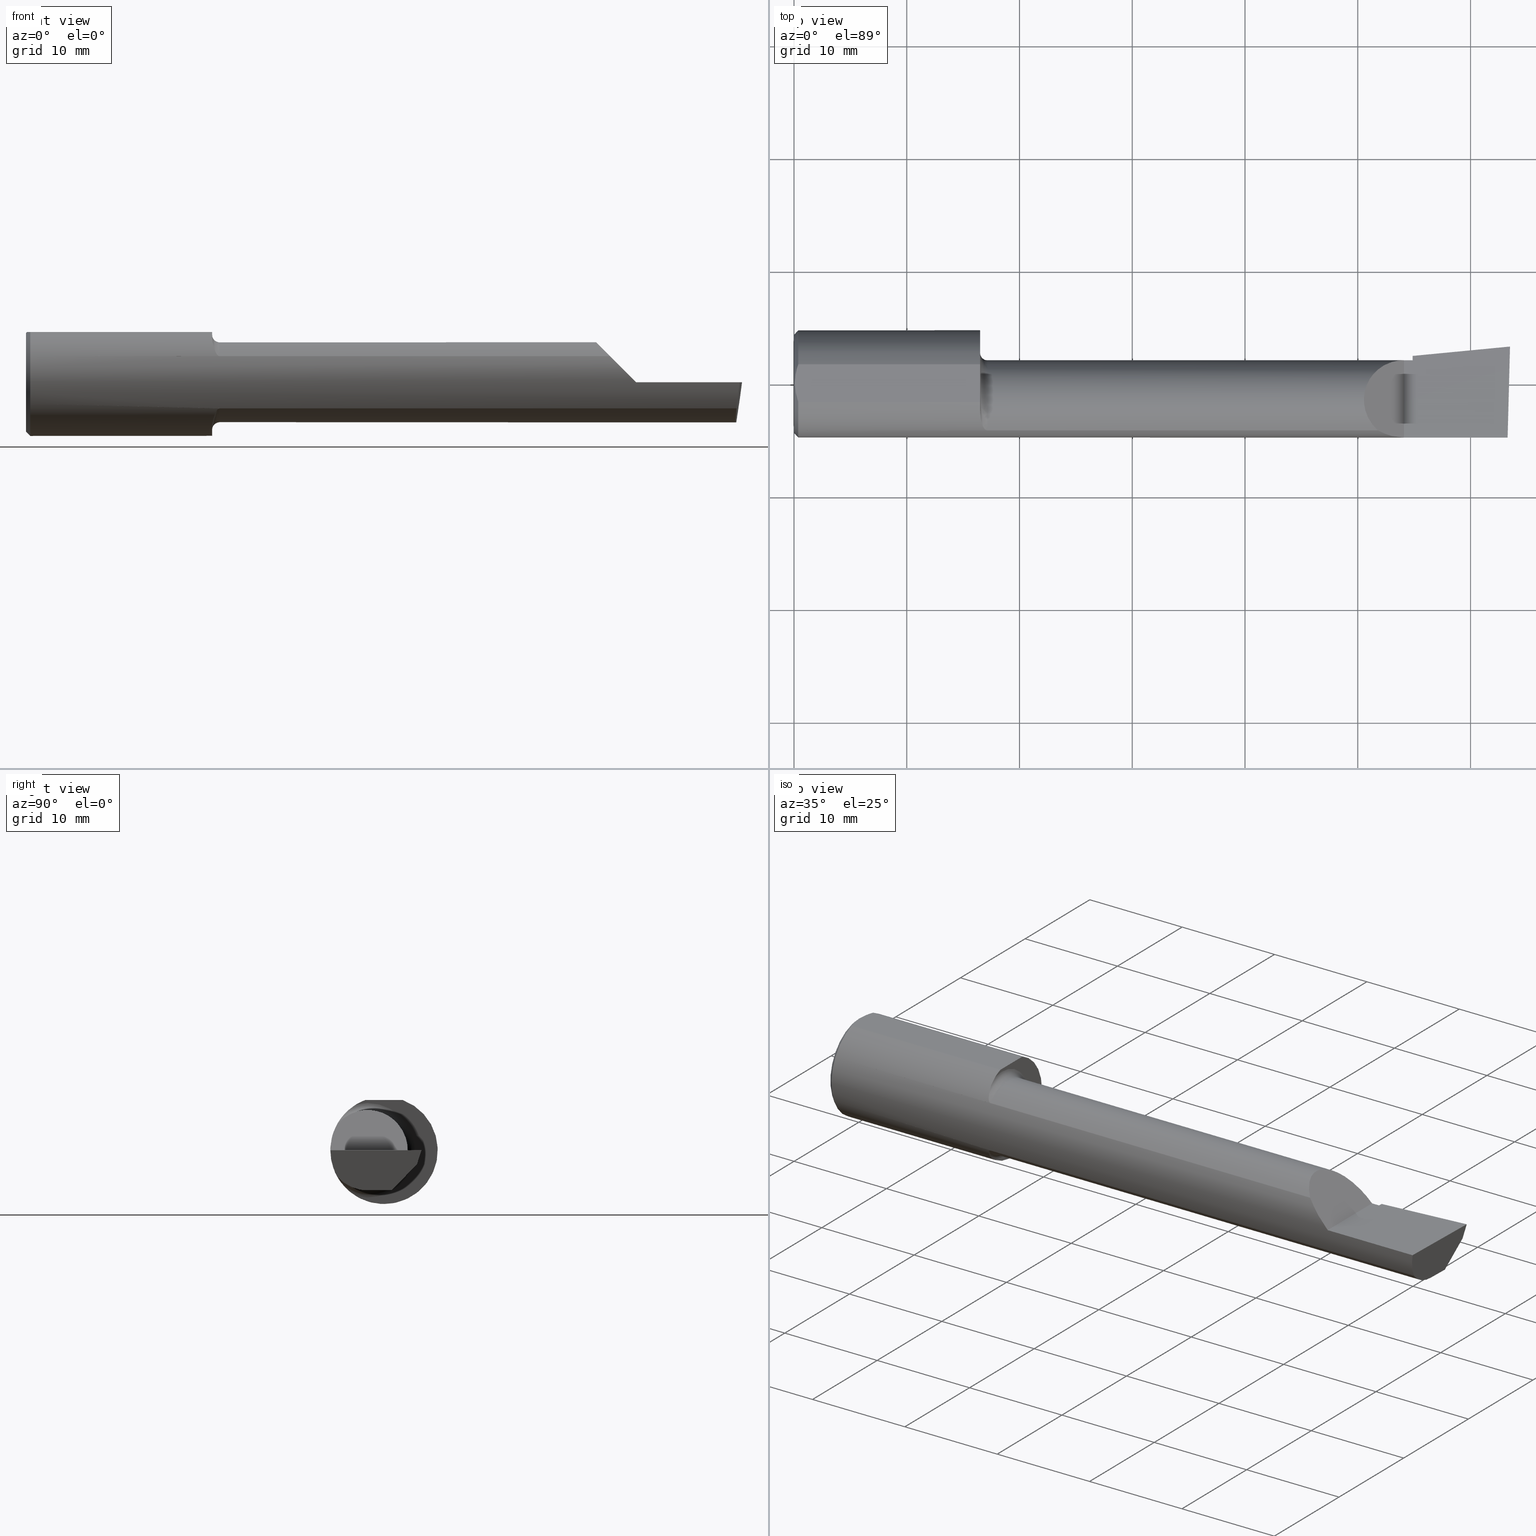
[diagram: canonical four-view strip — front | top / right | iso, engineering-drawing reading convention]
A machine part, canonical four-view strip (front | top / right | iso — engineering-drawing reading convention). The complete STEP part file that produces these views, byte-faithful:
ISO-10303-21;
HEADER;
FILE_DESCRIPTION (( 'STEP AP203' ),
    '1' );
FILE_NAME ('217495-B3201800.STEP',
    '2024-04-26T19:26:04',
    ( '' ),
    ( '' ),
    'SwSTEP 2.0',
    'SolidWorks 2022',
    '' );
FILE_SCHEMA (( 'CONFIG_CONTROL_DESIGN' ));
ENDSEC;

DATA;
#1 = DIRECTION ( 'NONE',  ( -6.829619984160658046E-18, 1.000000000000000000, 0.000000000000000000 ) ) ;
#2 = ORIENTED_EDGE ( 'NONE', *, *, #168, .T. ) ;
#3 = CARTESIAN_POINT ( 'NONE',  ( 0.6679759419021532585, -0.1612443294219083889, -0.09540922431498151390 ) ) ;
#4 = ADVANCED_BREP_SHAPE_REPRESENTATION ( '217495-B3201800', ( #332, #236 ), #601 ) ;
#5 = ORIENTED_EDGE ( 'NONE', *, *, #449, .T. ) ;
#6 = ADVANCED_FACE ( 'NONE', ( #98 ), #489, .F. ) ;
#7 = CARTESIAN_POINT ( 'NONE',  ( 2.160000000000000142, -0.05739999999999999963, 0.000000000000000000 ) ) ;
#8 = CARTESIAN_POINT ( 'NONE',  ( 2.160000000000000142, -0.05739999999999999963, 0.000000000000000000 ) ) ;
#9 = DIRECTION ( 'NONE',  ( 1.000000000000000000, 6.829619984160658046E-18, 0.000000000000000000 ) ) ;
#10 = CARTESIAN_POINT ( 'NONE',  ( 0.01499999999999999424, 0.000000000000000000, 0.000000000000000000 ) ) ;
#11 = CIRCLE ( 'NONE', #217, 0.1400499999999998413 ) ;
#12 = CARTESIAN_POINT ( 'NONE',  ( 2.511419111345317923, 0.1163922996227946260, -0.04999999999999999584 ) ) ;
#13 = CARTESIAN_POINT ( 'NONE',  ( 2.066758987970638284, -0.1792580844883770730, 0.06324101202936138755 ) ) ;
#14 = CALENDAR_DATE ( 2024, 26, 4 ) ;
#15 = CARTESIAN_POINT ( 'NONE',  ( 0.6749999999999999334, -0.1635956445993033970, 0.09130436773856114019 ) ) ;
#16 = PRODUCT_DEFINITION_SHAPE ( 'NONE', 'NONE',  #104 ) ;
#17 = APPROVAL ( #476, 'UNSPECIFIED' ) ;
#18 =( NAMED_UNIT ( * ) PLANE_ANGLE_UNIT ( ) SI_UNIT ( $, .RADIAN. ) );
#19 = DIRECTION ( 'NONE',  ( 0.000000000000000000, 0.2936076258024060692, 0.9559260233253795702 ) ) ;
#20 = ORIENTED_EDGE ( 'NONE', *, *, #548, .F. ) ;
#21 = VECTOR ( 'NONE', #149, 39.37007874015748143 ) ;
#22 = CARTESIAN_POINT ( 'NONE',  ( 2.160000000000000142, 0.09456875743780475407, -0.01088401009027229610 ) ) ;
#23 = VERTEX_POINT ( 'NONE', #278 ) ;
#24 = PERSON_AND_ORGANIZATION ( #119, #475 ) ;
#25 = CARTESIAN_POINT ( 'NONE',  ( 0.01499999999999997863, -0.06597272163553657975, 0.1753499999999999781 ) ) ;
#26 = ORIENTED_EDGE ( 'NONE', *, *, #421, .F. ) ;
#27 =( LENGTH_UNIT ( ) NAMED_UNIT ( * ) SI_UNIT ( $, .METRE. ) );
#28 = UNCERTAINTY_MEASURE_WITH_UNIT (LENGTH_MEASURE( 1.000000000000000082E-05 ), #214, 'distance_accuracy_value', 'NONE');
#29 = LINE ( 'NONE', #165, #166 ) ;
#30 = EDGE_LOOP ( 'NONE', ( #241, #5, #620, #609, #26, #290 ) ) ;
#31 = SHAPE_DEFINITION_REPRESENTATION ( #16, #4 ) ;
#32 = CARTESIAN_POINT ( 'NONE',  ( 0.004093196532652216939, -0.02240707710020816909, 0.1753499999999999504 ) ) ;
#33 = CIRCLE ( 'NONE', #463, 0.1723499999999996424 ) ;
#34 = EDGE_LOOP ( 'NONE', ( #565, #557, #108, #577 ) ) ;
#35 = EDGE_CURVE ( 'NONE', #173, #625, #190, .T. ) ;
#36 = DIRECTION ( 'NONE',  ( 6.829619984160658046E-18, -1.000000000000000000, 0.000000000000000000 ) ) ;
#37 = ORIENTED_EDGE ( 'NONE', *, *, #374, .T. ) ;
#38 = PLANE ( 'NONE',  #207 ) ;
#39 = VERTEX_POINT ( 'NONE', #138 ) ;
#40 = DIRECTION ( 'NONE',  ( -1.000000000000000000, -6.829619984160658046E-18, -0.000000000000000000 ) ) ;
#41 = CARTESIAN_POINT ( 'NONE',  ( 0.6518917549365448316, -0.1247344934163570340, 0.1400506178720498096 ) ) ;
#42 = AXIS2_PLACEMENT_3D ( 'NONE', #117, #471, #19 ) ;
#43 = EDGE_CURVE ( 'NONE', #23, #519, #354, .T. ) ;
#44 = DIRECTION ( 'NONE',  ( 6.829619984160658046E-18, -1.000000000000000000, 0.000000000000000000 ) ) ;
#45 = ORIENTED_EDGE ( 'NONE', *, *, #597, .F. ) ;
#46 = LINE ( 'NONE', #583, #52 ) ;
#47 = ORIENTED_EDGE ( 'NONE', *, *, #525, .F. ) ;
#48 = CARTESIAN_POINT ( 'NONE',  ( 0.6499999999999999112, -0.06597272163553659363, 0.1753499999999999781 ) ) ;
#49 = CARTESIAN_POINT ( 'NONE',  ( 0.6728009145006644820, -0.1635956445997552577, 0.09130436773775178760 ) ) ;
#50 = ADVANCED_FACE ( 'NONE', ( #441 ), #594, .F. ) ;
#51 = CIRCLE ( 'NONE', #337, 0.1400500000000000356 ) ;
#52 = VECTOR ( 'NONE', #585, 39.37007874015748143 ) ;
#53 = DIRECTION ( 'NONE',  ( 1.000000000000000000, 6.829619984160658046E-18, 0.000000000000000000 ) ) ;
#54 = DIRECTION ( 'NONE',  ( 0.000000000000000000, -1.000000000000000000, -8.537024980200821325E-17 ) ) ;
#55 = CC_DESIGN_PERSON_AND_ORGANIZATION_ASSIGNMENT ( #305, #139, ( #359 ) ) ;
#56 = CARTESIAN_POINT ( 'NONE',  ( 1.417500000000000204, -0.1635956445993031472, 0.09130436773856158428 ) ) ;
#57 = DIRECTION ( 'NONE',  ( 0.000000000000000000, -1.000000000000000000, 0.000000000000000000 ) ) ;
#58 = CARTESIAN_POINT ( 'NONE',  ( 0.6637431740823493964, -0.1572750258711012317, -0.1018777902325207485 ) ) ;
#59 = CARTESIAN_POINT ( 'NONE',  ( 2.160000000000000142, 0.09791172361283667636, 0.000000000000000000 ) ) ;
#60 = VECTOR ( 'NONE', #200, 39.37007874015748854 ) ;
#61 = DATE_TIME_ROLE ( 'creation_date' ) ;
#62 = ADVANCED_FACE ( 'NONE', ( #159 ), #294, .T. ) ;
#63 = DIRECTION ( 'NONE',  ( 6.829619984160658046E-18, -1.000000000000000000, 0.000000000000000000 ) ) ;
#64 = EDGE_LOOP ( 'NONE', ( #434, #136, #349, #414, #47, #88 ) ) ;
#65 = COORDINATED_UNIVERSAL_TIME_OFFSET ( 8, 0, .BEHIND. ) ;
#66 = DIRECTION ( 'NONE',  ( -1.000000000000000000, -0.000000000000000000, -0.000000000000000000 ) ) ;
#67 = ORIENTED_EDGE ( 'NONE', *, *, #168, .F. ) ;
#68 = CARTESIAN_POINT ( 'NONE',  ( 0.6530417279495579486, -0.1311116946065055688, -0.1340922927843366530 ) ) ;
#69 = DIRECTION ( 'NONE',  ( 0.7071067811865390240, 8.659560562355036396E-17, 0.7071067811865560104 ) ) ;
#70 = ORIENTED_EDGE ( 'NONE', *, *, #580, .T. ) ;
#71 = EDGE_CURVE ( 'NONE', #317, #304, #491, .T. ) ;
#72 = DIRECTION ( 'NONE',  ( 0.000000000000000000, 0.000000000000000000, 1.000000000000000000 ) ) ;
#73 = CIRCLE ( 'NONE', #127, 0.1873499999999999888 ) ;
#74 = CC_DESIGN_APPROVAL ( #17, ( #359 ) ) ;
#75 = DIRECTION ( 'NONE',  ( -6.829619984160658816E-18, 1.000000000000000000, 7.059994452165177242E-34 ) ) ;
#76 = ORIENTED_EDGE ( 'NONE', *, *, #35, .T. ) ;
#77 = DIRECTION ( 'NONE',  ( 6.829619984160657276E-18, -1.000000000000000000, 0.000000000000000000 ) ) ;
#78 = EDGE_LOOP ( 'NONE', ( #420, #85, #458, #503 ) ) ;
#79 = EDGE_CURVE ( 'NONE', #91, #393, #73, .T. ) ;
#80 = FACE_OUTER_BOUND ( 'NONE', #78, .T. ) ;
#81 = ORIENTED_EDGE ( 'NONE', *, *, #213, .F. ) ;
#82 = CARTESIAN_POINT ( 'NONE',  ( 3.377502344341257155E-32, -0.1873499999999999610, 3.267291166268304703E-16 ) ) ;
#83 = AXIS2_PLACEMENT_3D ( 'NONE', #428, #183, #280 ) ;
#84 = VECTOR ( 'NONE', #553, 39.37007874015748854 ) ;
#85 = ORIENTED_EDGE ( 'NONE', *, *, #497, .T. ) ;
#86 = DATE_AND_TIME ( #274, #167 ) ;
#87 = FACE_OUTER_BOUND ( 'NONE', #237, .T. ) ;
#88 = ORIENTED_EDGE ( 'NONE', *, *, #608, .F. ) ;
#89 = DATE_AND_TIME ( #318, #370 ) ;
#90 = CARTESIAN_POINT ( 'NONE',  ( 2.477873865042410806, -0.05739999999999999963, -0.1400500000000000633 ) ) ;
#91 = VERTEX_POINT ( 'NONE', #244 ) ;
#92 = EDGE_CURVE ( 'NONE', #39, #455, #390, .T. ) ;
#93 = FACE_OUTER_BOUND ( 'NONE', #30, .T. ) ;
#94 = ORIENTED_EDGE ( 'NONE', *, *, #394, .T. ) ;
#95 = TOROIDAL_SURFACE ( 'NONE', #450, 0.1650499999999998635, 0.02500000000000000486 ) ;
#96 = APPROVAL_PERSON_ORGANIZATION ( #178, #134, #268 ) ;
#97 = DIRECTION ( 'NONE',  ( -0.7071067811865439090, 0.000000000000000000, -0.7071067811865512365 ) ) ;
#98 = FACE_OUTER_BOUND ( 'NONE', #445, .T. ) ;
#99 = LINE ( 'NONE', #56, #540 ) ;
#100 = ADVANCED_FACE ( 'NONE', ( #403 ), #295, .F. ) ;
#101 = DIRECTION ( 'NONE',  ( 0.000000000000000000, -1.438723400918613551E-16, -1.000000000000000000 ) ) ;
#102 = CARTESIAN_POINT ( 'NONE',  ( 2.481080296960509024, -0.1635956445993031472, -0.09130436773856158428 ) ) ;
#103 = CARTESIAN_POINT ( 'NONE',  ( 0.6561423219567501519, -0.1426151417460933823, 0.1217894822571228830 ) ) ;
#104 = PRODUCT_DEFINITION ( 'UNKNOWN', '', #551, #128 ) ;
#105 = VECTOR ( 'NONE', #219, 39.37007874015748143 ) ;
#106 = DIRECTION ( 'NONE',  ( 0.02617694830779455570, 0.9996573249755593693, -2.665804247635873179E-18 ) ) ;
#107 = CARTESIAN_POINT ( 'NONE',  ( 2.038695632261437130, -0.1635956445993030084, 0.09130436773856177857 ) ) ;
#108 = ORIENTED_EDGE ( 'NONE', *, *, #421, .T. ) ;
#109 = LINE ( 'NONE', #345, #245 ) ;
#110 = CARTESIAN_POINT ( 'NONE',  ( 0.6709038625689690560, -0.1628809688430623848, 0.09258733509388435146 ) ) ;
#111 = ADVANCED_FACE ( 'NONE', ( #586 ), #344, .F. ) ;
#112 = CARTESIAN_POINT ( 'NONE',  ( 0.6499999999999999112, 0.1076499999999998569, 0.000000000000000000 ) ) ;
#113 = CARTESIAN_POINT ( 'NONE',  ( 0.5470260790800316464, -0.05740000000000000657, 2.701812985571356346E-16 ) ) ;
#114 = ORIENTED_EDGE ( 'NONE', *, *, #531, .F. ) ;
#115 = AXIS2_PLACEMENT_3D ( 'NONE', #353, #547, #63 ) ;
#116 = PERSON_AND_ORGANIZATION ( #119, #475 ) ;
#117 = CARTESIAN_POINT ( 'NONE',  ( 2.509953961983671711, 0.1316084575252021438, -6.829619984160658046E-17 ) ) ;
#118 = MECHANICAL_CONTEXT ( 'NONE', #459, 'mechanical' ) ;
#119 = PERSON ( 'UNSPECIFIED', 'UNSPECIFIED', 'UNSPECIFIED', ('UNSPECIFIED'), ('UNSPECIFIED'), ('UNSPECIFIED') ) ;
#120 = DIRECTION ( 'NONE',  ( 1.000000000000000000, 0.000000000000000000, 0.000000000000000000 ) ) ;
#121 = EDGE_CURVE ( 'NONE', #310, #380, #303, .T. ) ;
#122 = VERTEX_POINT ( 'NONE', #351 ) ;
#123 = APPLICATION_PROTOCOL_DEFINITION ( 'international standard', 'config_control_design', 1994, #566 ) ;
#124 = PLANE ( 'NONE',  #42 ) ;
#125 = ORIENTED_EDGE ( 'NONE', *, *, #43, .F. ) ;
#126 = PERSON_AND_ORGANIZATION ( #119, #475 ) ;
#127 = AXIS2_PLACEMENT_3D ( 'NONE', #346, #253, #454 ) ;
#128 = DESIGN_CONTEXT ( 'detailed design', #566, 'design' ) ;
#129 = FACE_OUTER_BOUND ( 'NONE', #254, .T. ) ;
#130 = ORIENTED_EDGE ( 'NONE', *, *, #449, .F. ) ;
#131 = COORDINATED_UNIVERSAL_TIME_OFFSET ( 8, 0, .BEHIND. ) ;
#132 = LINE ( 'NONE', #363, #198 ) ;
#133 = VERTEX_POINT ( 'NONE', #298 ) ;
#134 = APPROVAL ( #174, 'UNSPECIFIED' ) ;
#135 = DIRECTION ( 'NONE',  ( -1.000000000000000000, -6.829619984160658046E-18, -0.000000000000000000 ) ) ;
#136 = ORIENTED_EDGE ( 'NONE', *, *, #121, .F. ) ;
#137 = CARTESIAN_POINT ( 'NONE',  ( 0.000000000000000000, 2.202527268266512578E-17, 0.1723499999999996424 ) ) ;
#138 = CARTESIAN_POINT ( 'NONE',  ( 2.038695632261437130, -0.1635956445993030084, 0.09130436773856177857 ) ) ;
#139 = PERSON_AND_ORGANIZATION_ROLE ( 'classification_officer' ) ;
#140 = DIRECTION ( 'NONE',  ( -1.000000000000000000, -0.000000000000000000, -0.000000000000000000 ) ) ;
#141 = CARTESIAN_POINT ( 'NONE',  ( 0.6499999999999999112, -0.1045012500212956774, 0.1557348687830033274 ) ) ;
#142 = EDGE_CURVE ( 'NONE', #393, #615, #444, .T. ) ;
#143 = CARTESIAN_POINT ( 'NONE',  ( 2.129999999999999893, 0.08264999999999983471, 1.065442715258197396E-16 ) ) ;
#144 = ORIENTED_EDGE ( 'NONE', *, *, #187, .F. ) ;
#145 = CARTESIAN_POINT ( 'NONE',  ( 0.01499999999999999424, 0.000000000000000000, 0.000000000000000000 ) ) ;
#146 = VERTEX_POINT ( 'NONE', #541 ) ;
#147 = VECTOR ( 'NONE', #106, 39.37007874015748854 ) ;
#148 = DIRECTION ( 'NONE',  ( -1.000000000000000000, 5.691349986800549142E-18, -0.000000000000000000 ) ) ;
#149 = DIRECTION ( 'NONE',  ( 0.9953961983671787417, 0.09584575252022459191, -1.028972571603813720E-16 ) ) ;
#150 =( BOUNDED_CURVE ( )  B_SPLINE_CURVE ( 3, ( #326, #229, #235, #426 ),
 .UNSPECIFIED., .F., .F. ) 
 B_SPLINE_CURVE_WITH_KNOTS ( ( 4, 4 ),
 ( 5.632580117768158701, 6.493234751459288745 ),
 .UNSPECIFIED. ) 
 CURVE ( )  GEOMETRIC_REPRESENTATION_ITEM ( )  RATIONAL_B_SPLINE_CURVE ( ( 1.000000000000000000, 0.9392195014330939618, 0.9392195014330939618, 1.000000000000000000 ) ) 
 REPRESENTATION_ITEM ( '' )  );
#151 = CARTESIAN_POINT ( 'NONE',  ( 2.475850273311264615, -0.1244607267090816344, -0.1422282308645907711 ) ) ;
#152 = DIRECTION ( 'NONE',  ( 6.829619984160658046E-18, -1.000000000000000000, 0.000000000000000000 ) ) ;
#153 = ORIENTED_EDGE ( 'NONE', *, *, #195, .T. ) ;
#154 = CARTESIAN_POINT ( 'NONE',  ( 2.487725449370724817, -0.1873500000000000165, -0.03213820089768502225 ) ) ;
#155 = CARTESIAN_POINT ( 'NONE',  ( 0.6530259122056834009, -0.1310442973014117607, 0.1341609063345040320 ) ) ;
#156 = VECTOR ( 'NONE', #69, 39.37007874015748143 ) ;
#157 = CIRCLE ( 'NONE', #562, 0.1873499999999999888 ) ;
#158 = CARTESIAN_POINT ( 'NONE',  ( 0.6727799353194344745, -0.1635956445993035357, -0.09130436773856091814 ) ) ;
#159 = FACE_OUTER_BOUND ( 'NONE', #273, .T. ) ;
#160 = EDGE_CURVE ( 'NONE', #625, #173, #501, .T. ) ;
#161 = EDGE_LOOP ( 'NONE', ( #130, #568, #627, #153 ) ) ;
#162 = DIRECTION ( 'NONE',  ( 0.1053106618240648301, 0.6976485211320200275, 0.7086580314005356263 ) ) ;
#163 = PLANE ( 'NONE',  #115 ) ;
#164 =( NAMED_UNIT ( * ) SI_UNIT ( $, .STERADIAN. ) SOLID_ANGLE_UNIT ( ) );
#165 = CARTESIAN_POINT ( 'NONE',  ( 2.160000000000000142, -0.05739999999999999963, -0.1400500000000000633 ) ) ;
#166 = VECTOR ( 'NONE', #316, 39.37007874015748143 ) ;
#167 = LOCAL_TIME ( 12, 26, 4.000000000000000000, #522 ) ;
#168 = EDGE_CURVE ( 'NONE', #281, #39, #624, .T. ) ;
#169 = FACE_OUTER_BOUND ( 'NONE', #266, .T. ) ;
#170 = ORIENTED_EDGE ( 'NONE', *, *, #187, .T. ) ;
#171 = CC_DESIGN_PERSON_AND_ORGANIZATION_ASSIGNMENT ( #610, #500, ( #551 ) ) ;
#172 = CARTESIAN_POINT ( 'NONE',  ( 2.491672876940991710, -0.1873499999999999888, 6.915950918908297591E-17 ) ) ;
#173 = VERTEX_POINT ( 'NONE', #405 ) ;
#174 = APPROVAL_STATUS ( 'not_yet_approved' ) ;
#175 = DIRECTION ( 'NONE',  ( 1.000000000000000000, 0.000000000000000000, 0.000000000000000000 ) ) ;
#176 = ORIENTED_EDGE ( 'NONE', *, *, #412, .F. ) ;
#177 = B_SPLINE_CURVE_WITH_KNOTS ( 'NONE', 3,
 ( #611, #307, #508, #372, #223, #180 ),
 .UNSPECIFIED., .F., .F.,
 ( 4, 2, 4 ),
 ( 0.003480013901590607410, 0.004330767971208083697, 0.005181522040825559984 ),
 .UNSPECIFIED. ) ;
#178 = PERSON_AND_ORGANIZATION ( #119, #475 ) ;
#179 = AXIS2_PLACEMENT_3D ( 'NONE', #614, #135, #570 ) ;
#180 = CARTESIAN_POINT ( 'NONE',  ( 0.01499999999999999424, 0.06597272163553663527, 0.1753499999999999781 ) ) ;
#181 = ORIENTED_EDGE ( 'NONE', *, *, #213, .T. ) ;
#182 = ADVANCED_FACE ( 'NONE', ( #447 ), #163, .T. ) ;
#183 = DIRECTION ( 'NONE',  ( -1.000000000000000000, -0.000000000000000000, -0.000000000000000000 ) ) ;
#184 = ORIENTED_EDGE ( 'NONE', *, *, #233, .F. ) ;
#185 = CYLINDRICAL_SURFACE ( 'NONE', #83, 0.1873499999999999888 ) ;
#186 = DIRECTION ( 'NONE',  ( -1.033731667140896077E-16, 0.000000000000000000, -1.000000000000000000 ) ) ;
#187 = EDGE_CURVE ( 'NONE', #389, #393, #132, .T. ) ;
#188 = CARTESIAN_POINT ( 'NONE',  ( 2.129999999999999893, -0.2500000000000000555, 1.065442715258197396E-16 ) ) ;
#189 = CIRCLE ( 'NONE', #179, 0.1650499999999998635 ) ;
#190 = LINE ( 'NONE', #331, #381 ) ;
#191 = DIRECTION ( 'NONE',  ( 0.000000000000000000, -1.000000000000000000, 0.000000000000000000 ) ) ;
#192 = ORIENTED_EDGE ( 'NONE', *, *, #531, .T. ) ;
#193 = PLANE ( 'NONE',  #530 ) ;
#194 = VERTEX_POINT ( 'NONE', #559 ) ;
#195 = EDGE_CURVE ( 'NONE', #146, #194, #29, .T. ) ;
#196 = CARTESIAN_POINT ( 'NONE',  ( -9.564882787816658464E-19, 0.08264999999999991798, 3.267291166268304703E-16 ) ) ;
#197 = ORIENTED_EDGE ( 'NONE', *, *, #437, .T. ) ;
#198 = VECTOR ( 'NONE', #120, 39.37007874015748143 ) ;
#199 = VECTOR ( 'NONE', #498, 39.37007874015748854 ) ;
#200 = DIRECTION ( 'NONE',  ( -0.9953961983671800740, -0.09584575252021031166, 0.000000000000000000 ) ) ;
#201 = CARTESIAN_POINT ( 'NONE',  ( 2.500000000000000000, 0.2373500000000000332, 0.1753499999999999504 ) ) ;
#202 = LINE ( 'NONE', #595, #263 ) ;
#203 = B_SPLINE_CURVE_WITH_KNOTS ( 'NONE', 3,
 ( #439, #158, #350, #3, #299, #58, #448, #208, #510, #68, #456, #453, #598, #407 ),
 .UNSPECIFIED., .F., .F.,
 ( 4, 2, 2, 2, 2, 2, 4 ),
 ( 1.968340875534775581E-07, 0.0001667114270246288703, 0.0003332260199617042705, 0.0006662552058358511137, 0.001332313577584142740, 0.001998371949332434366, 0.002664430321080725993 ),
 .UNSPECIFIED. ) ;
#204 = ORIENTED_EDGE ( 'NONE', *, *, #569, .T. ) ;
#205 = DIRECTION ( 'NONE',  ( 0.000000000000000000, 1.000000000000000000, 0.000000000000000000 ) ) ;
#206 = CARTESIAN_POINT ( 'NONE',  ( 2.129999999999999893, 0.08264999999999983471, 1.065442715258197396E-16 ) ) ;
#207 = AXIS2_PLACEMENT_3D ( 'NONE', #188, #97, #289 ) ;
#208 = CARTESIAN_POINT ( 'NONE',  ( 0.6580682074421708716, -0.1478915270140213623, -0.1153063024254919883 ) ) ;
#209 = CARTESIAN_POINT ( 'NONE',  ( 0.6499999999999999112, 0.2373500000000000332, 0.1753499999999999504 ) ) ;
#210 = PRODUCT ( '217495-B3201800', '217495-B3201800', '', ( #118 ) ) ;
#211 = APPROVAL_DATE_TIME ( #549, #442 ) ;
#212 = DIRECTION ( 'NONE',  ( 1.000000000000000000, 0.000000000000000000, 0.000000000000000000 ) ) ;
#213 = EDGE_CURVE ( 'NONE', #470, #338, #581, .T. ) ;
#214 =( CONVERSION_BASED_UNIT ( 'INCH', #264 ) LENGTH_UNIT ( ) NAMED_UNIT ( #220 ) );
#215 = CARTESIAN_POINT ( 'NONE',  ( 2.160000000000000142, 0.09791172361284175563, 3.308097179827818849E-16 ) ) ;
#216 = ORIENTED_EDGE ( 'NONE', *, *, #542, .F. ) ;
#217 = AXIS2_PLACEMENT_3D ( 'NONE', #623, #385, #191 ) ;
#218 = CC_DESIGN_PERSON_AND_ORGANIZATION_ASSIGNMENT ( #116, #418, ( #551 ) ) ;
#219 = DIRECTION ( 'NONE',  ( -1.000000000000000000, -0.000000000000000000, -0.000000000000000000 ) ) ;
#220 = DIMENSIONAL_EXPONENTS ( 1.000000000000000000, 0.000000000000000000, 0.000000000000000000, 0.000000000000000000, 0.000000000000000000, 0.000000000000000000, 0.000000000000000000 ) ;
#221 = ORIENTED_EDGE ( 'NONE', *, *, #71, .F. ) ;
#222 = DATE_AND_TIME ( #259, #382 ) ;
#223 = CARTESIAN_POINT ( 'NONE',  ( 0.01125230581755086272, 0.05532998191409922023, 0.1753500000000000059 ) ) ;
#224 = ORIENTED_EDGE ( 'NONE', *, *, #160, .T. ) ;
#225 = CARTESIAN_POINT ( 'NONE',  ( 0.000000000000000000, -0.05740000000000001351, 0.000000000000000000 ) ) ;
#226 = ADVANCED_FACE ( 'NONE', ( #129 ), #515, .T. ) ;
#227 = VERTEX_POINT ( 'NONE', #172 ) ;
#228 = AXIS2_PLACEMENT_3D ( 'NONE', #10, #212, #499 ) ;
#229 = CARTESIAN_POINT ( 'NONE',  ( 2.477925907309857845, -0.1365595166907236646, -0.1227499502647106805 ) ) ;
#230 = ORIENTED_EDGE ( 'NONE', *, *, #296, .T. ) ;
#231 = DIRECTION ( 'NONE',  ( 0.000000000000000000, -1.000000000000000000, 0.000000000000000000 ) ) ;
#232 = ORIENTED_EDGE ( 'NONE', *, *, #616, .F. ) ;
#233 = EDGE_CURVE ( 'NONE', #529, #133, #293, .T. ) ;
#234 = ORIENTED_EDGE ( 'NONE', *, *, #257, .T. ) ;
#235 = CARTESIAN_POINT ( 'NONE',  ( 2.476787929832031221, -0.09887019258091188367, -0.1400499999999999801 ) ) ;
#236 = AXIS2_PLACEMENT_3D ( 'NONE', #555, #72, #606 ) ;
#237 = EDGE_LOOP ( 'NONE', ( #603, #328, #197, #2, #114, #125, #232, #234, #216, #287, #170, #334, #427 ) ) ;
#238 = LINE ( 'NONE', #520, #592 ) ;
#239 = EDGE_LOOP ( 'NONE', ( #432, #410, #261, #513 ) ) ;
#240 = LINE ( 'NONE', #196, #411 ) ;
#241 = ORIENTED_EDGE ( 'NONE', *, *, #589, .F. ) ;
#242 = CARTESIAN_POINT ( 'NONE',  ( 0.6749999999999999334, -0.1635956445993034525, -0.09130436773856105692 ) ) ;
#243 = AXIS2_PLACEMENT_3D ( 'NONE', #607, #175, #333 ) ;
#244 = CARTESIAN_POINT ( 'NONE',  ( 0.6499999999999999112, -0.09715400696864148755, -0.1601908905959922580 ) ) ;
#245 = VECTOR ( 'NONE', #162, 39.37007874015748854 ) ;
#246 = CARTESIAN_POINT ( 'NONE',  ( 0.01499999999999999424, 0.000000000000000000, 0.000000000000000000 ) ) ;
#247 = CARTESIAN_POINT ( 'NONE',  ( 2.477889026591898247, -0.05682100378451880596, -0.1400500000000000633 ) ) ;
#248 = FACE_OUTER_BOUND ( 'NONE', #64, .T. ) ;
#249 = CARTESIAN_POINT ( 'NONE',  ( 2.038695632261437130, -0.1635956445993030084, 0.09130436773856177857 ) ) ;
#250 = DIRECTION ( 'NONE',  ( -1.000000000000000000, -6.829619984160658046E-18, -0.000000000000000000 ) ) ;
#251 = DIRECTION ( 'NONE',  ( -0.02617694830779456611, -0.9996573249755592583, -8.535148296544459954E-17 ) ) ;
#252 = CIRCLE ( 'NONE', #612, 0.1400500000000000356 ) ;
#253 = DIRECTION ( 'NONE',  ( 1.000000000000000000, 6.829619984160658046E-18, 0.000000000000000000 ) ) ;
#254 = EDGE_LOOP ( 'NONE', ( #464, #362, #176, #192, #591, #204, #37, #436, #480, #45 ) ) ;
#255 = COORDINATED_UNIVERSAL_TIME_OFFSET ( 8, 0, .BEHIND. ) ;
#256 = DIRECTION ( 'NONE',  ( 0.000000000000000000, 0.000000000000000000, 1.000000000000000000 ) ) ;
#257 = EDGE_CURVE ( 'NONE', #615, #529, #309, .T. ) ;
#258 = ORIENTED_EDGE ( 'NONE', *, *, #92, .F. ) ;
#259 = CALENDAR_DATE ( 2024, 26, 4 ) ;
#260 = LINE ( 'NONE', #22, #392 ) ;
#261 = ORIENTED_EDGE ( 'NONE', *, *, #628, .T. ) ;
#262 = AXIS2_PLACEMENT_3D ( 'NONE', #145, #330, #433 ) ;
#263 = VECTOR ( 'NONE', #148, 39.37007874015748143 ) ;
#264 = LENGTH_MEASURE_WITH_UNIT ( LENGTH_MEASURE( 0.02539999999999999897 ), #27 );
#265 = CARTESIAN_POINT ( 'NONE',  ( 0.000000000000000000, 0.000000000000000000, -0.1723499999999996424 ) ) ;
#266 = EDGE_LOOP ( 'NONE', ( #571, #377, #400, #605, #473 ) ) ;
#267 = EDGE_CURVE ( 'NONE', #133, #389, #177, .T. ) ;
#268 = APPROVAL_ROLE ( '' ) ;
#269 = CARTESIAN_POINT ( 'NONE',  ( 0.003000000000000172667, -0.01126410975715121283, 0.1753500000000000059 ) ) ;
#270 = ORIENTED_EDGE ( 'NONE', *, *, #142, .F. ) ;
#271 = APPROVAL_DATE_TIME ( #86, #17 ) ;
#272 = CARTESIAN_POINT ( 'NONE',  ( 2.499999999999979128, 0.1306500000000238859, 8.403660643088248419E-14 ) ) ;
#273 = EDGE_LOOP ( 'NONE', ( #81, #587, #543, #509, #20 ) ) ;
#274 = CALENDAR_DATE ( 2024, 26, 4 ) ;
#275 = AXIS2_PLACEMENT_3D ( 'NONE', #59, #596, #152 ) ;
#276 = CC_DESIGN_SECURITY_CLASSIFICATION ( #359, ( #551 ) ) ;
#277 = LINE ( 'NONE', #431, #538 ) ;
#278 = CARTESIAN_POINT ( 'NONE',  ( 0.6499999999999999112, -0.09715400696864148755, 0.1601908905959922580 ) ) ;
#279 = EDGE_CURVE ( 'NONE', #524, #304, #511, .T. ) ;
#280 = DIRECTION ( 'NONE',  ( 0.000000000000000000, 0.000000000000000000, 1.000000000000000000 ) ) ;
#281 = VERTEX_POINT ( 'NONE', #408 ) ;
#282 = FACE_OUTER_BOUND ( 'NONE', #34, .T. ) ;
#283 = ORIENTED_EDGE ( 'NONE', *, *, #364, .T. ) ;
#284 = CARTESIAN_POINT ( 'NONE',  ( 0.6749999999999999334, -0.05739999999999999963, 0.000000000000000000 ) ) ;
#285 = VECTOR ( 'NONE', #251, 39.37007874015748854 ) ;
#286 = CC_DESIGN_APPROVAL ( #134, ( #104 ) ) ;
#287 = ORIENTED_EDGE ( 'NONE', *, *, #460, .F. ) ;
#288 = EDGE_CURVE ( 'NONE', #122, #317, #556, .T. ) ;
#289 = DIRECTION ( 'NONE',  ( -0.7071067811865511255, 0.000000000000000000, 0.7071067811865437980 ) ) ;
#290 = ORIENTED_EDGE ( 'NONE', *, *, #497, .F. ) ;
#291 = DIRECTION ( 'NONE',  ( 1.000000000000000000, 6.829619984160658046E-18, 0.000000000000000000 ) ) ;
#292 = CARTESIAN_POINT ( 'NONE',  ( 1.921229036482944075, -0.06260079402492445266, 0.2087709635170538203 ) ) ;
#293 = B_SPLINE_CURVE_WITH_KNOTS ( 'NONE', 3,
 ( #25, #602, #457, #32, #269, #419 ),
 .UNSPECIFIED., .F., .F.,
 ( 4, 2, 4 ),
 ( 0.001779942938356815062, 0.002629978419973711019, 0.003480013901590607410 ),
 .UNSPECIFIED. ) ;
#294 = CONICAL_SURFACE ( 'NONE', #228, 0.1873499999999999888, 0.7853981633974602694 ) ;
#295 = PLANE ( 'NONE',  #484 ) ;
#296 = EDGE_CURVE ( 'NONE', #338, #470, #33, .T. ) ;
#297 = LINE ( 'NONE', #401, #147 ) ;
#298 = CARTESIAN_POINT ( 'NONE',  ( 0.003000000000000218638, 2.334609556160449697E-17, 0.1753499999999999781 ) ) ;
#299 = CARTESIAN_POINT ( 'NONE',  ( 0.6668149093790884940, -0.1602818635245161494, -0.09702252612905233609 ) ) ;
#300 = CARTESIAN_POINT ( 'NONE',  ( 0.6680018598681169983, -0.1612625562479373387, 0.09537826053888130706 ) ) ;
#301 = EDGE_CURVE ( 'NONE', #470, #133, #416, .T. ) ;
#302 = DIRECTION ( 'NONE',  ( 0.000000000000000000, 0.000000000000000000, 1.000000000000000000 ) ) ;
#303 = LINE ( 'NONE', #247, #285 ) ;
#304 = VERTEX_POINT ( 'NONE', #272 ) ;
#305 = PERSON_AND_ORGANIZATION ( #119, #475 ) ;
#306 = PRODUCT_RELATED_PRODUCT_CATEGORY ( 'detail', '', ( #210 ) ) ;
#307 = CARTESIAN_POINT ( 'NONE',  ( 0.003000000000000169632, 0.01127363201155560934, 0.1753499999999999781 ) ) ;
#308 = ORIENTED_EDGE ( 'NONE', *, *, #267, .F. ) ;
#309 = LINE ( 'NONE', #469, #105 ) ;
#310 = VERTEX_POINT ( 'NONE', #518 ) ;
#311 = PERSON_AND_ORGANIZATION_ROLE ( 'design_owner' ) ;
#312 = FACE_OUTER_BOUND ( 'NONE', #575, .T. ) ;
#313 = ORIENTED_EDGE ( 'NONE', *, *, #437, .F. ) ;
#314 = ADVANCED_FACE ( 'NONE', ( #80 ), #124, .T. ) ;
#315 = APPROVAL_ROLE ( '' ) ;
#316 = DIRECTION ( 'NONE',  ( 0.000000000000000000, 1.000000000000000000, 8.537024980200821325E-17 ) ) ;
#317 = VERTEX_POINT ( 'NONE', #215 ) ;
#318 = CALENDAR_DATE ( 2024, 26, 4 ) ;
#319 = CARTESIAN_POINT ( 'NONE',  ( 0.01499999999999999424, 2.294375778202566330E-17, 0.1873499999999999888 ) ) ;
#320 = EDGE_LOOP ( 'NONE', ( #258, #67, #283 ) ) ;
#321 = ADVANCED_FACE ( 'NONE', ( #169 ), #357, .T. ) ;
#322 = CARTESIAN_POINT ( 'NONE',  ( 0.01499999999999999424, 0.000000000000000000, -0.1873499999999999888 ) ) ;
#323 = CARTESIAN_POINT ( 'NONE',  ( 2.500000000000000000, -0.2500000000000000555, 6.829619984160658046E-17 ) ) ;
#324 = VECTOR ( 'NONE', #388, 39.37007874015748143 ) ;
#325 = APPROVAL_PERSON_ORGANIZATION ( #126, #442, #315 ) ;
#326 = CARTESIAN_POINT ( 'NONE',  ( 2.481080296960509024, -0.1635956445993031472, -0.09130436773856158428 ) ) ;
#327 = CC_DESIGN_PERSON_AND_ORGANIZATION_ASSIGNMENT ( #24, #311, ( #210 ) ) ;
#328 = ORIENTED_EDGE ( 'NONE', *, *, #608, .T. ) ;
#329 = APPROVAL_ROLE ( '' ) ;
#330 = DIRECTION ( 'NONE',  ( -1.000000000000000000, -0.000000000000000000, -0.000000000000000000 ) ) ;
#331 = CARTESIAN_POINT ( 'NONE',  ( 2.160000000000000142, 0.06382066673065313334, -0.06931012851386068874 ) ) ;
#332 = MANIFOLD_SOLID_BREP ( 'Extrude7', #369 ) ;
#333 = DIRECTION ( 'NONE',  ( 0.000000000000000000, 0.000000000000000000, -1.000000000000000000 ) ) ;
#334 = ORIENTED_EDGE ( 'NONE', *, *, #79, .F. ) ;
#335 = EDGE_CURVE ( 'NONE', #317, #425, #260, .T. ) ;
#336 = DIRECTION ( 'NONE',  ( -0.06894566448119621160, 0.7160281025913034503, -0.6946583704589934793 ) ) ;
#337 = AXIS2_PLACEMENT_3D ( 'NONE', #532, #40, #231 ) ;
#338 = VERTEX_POINT ( 'NONE', #265 ) ;
#339 =( BOUNDED_CURVE ( )  B_SPLINE_CURVE ( 3, ( #490, #340, #154, #534 ),
 .UNSPECIFIED., .F., .F. ) 
 B_SPLINE_CURVE_WITH_KNOTS ( ( 4, 4 ),
 ( 0.8516985021657607069, 1.360746882515194711 ),
 .UNSPECIFIED. ) 
 CURVE ( )  GEOMETRIC_REPRESENTATION_ITEM ( )  RATIONAL_B_SPLINE_CURVE ( ( 1.000000000000000000, 0.9785221379938656705, 0.9785221379938656705, 1.000000000000000000 ) ) 
 REPRESENTATION_ITEM ( '' )  );
#340 = CARTESIAN_POINT ( 'NONE',  ( 2.484117089522338340, -0.1792580844883771285, -0.06324101202936123489 ) ) ;
#341 = CARTESIAN_POINT ( 'NONE',  ( 0.6622046384587365608, -0.1550630761760526666, 0.1052254855377557502 ) ) ;
#342 = DIRECTION ( 'NONE',  ( -0.9922060308645607174, 0.02598182930461559459, 0.1218693434050600738 ) ) ;
#343 = ADVANCED_FACE ( 'NONE', ( #312 ), #466, .F. ) ;
#344 = PLANE ( 'NONE',  #600 ) ;
#345 = CARTESIAN_POINT ( 'NONE',  ( 2.493766568580444432, 0.1168246249203733073, -0.04780233936830601688 ) ) ;
#346 = CARTESIAN_POINT ( 'NONE',  ( 0.6499999999999999112, 0.000000000000000000, 0.000000000000000000 ) ) ;
#347 = EDGE_CURVE ( 'NONE', #561, #619, #567, .T. ) ;
#348 = AXIS2_PLACEMENT_3D ( 'NONE', #446, #9, #205 ) ;
#349 = ORIENTED_EDGE ( 'NONE', *, *, #589, .T. ) ;
#350 = CARTESIAN_POINT ( 'NONE',  ( 0.6708814992308700376, -0.1628722075910994382, -0.09260290410947796813 ) ) ;
#351 = CARTESIAN_POINT ( 'NONE',  ( 2.160000000000000142, 0.08265000000000001512, 3.267291166268307168E-16 ) ) ;
#352 = DIRECTION ( 'NONE',  ( -1.000000000000000000, -0.000000000000000000, -0.000000000000000000 ) ) ;
#353 = CARTESIAN_POINT ( 'NONE',  ( 2.160000000000000142, 0.09791172361283667636, 0.000000000000000000 ) ) ;
#354 = B_SPLINE_CURVE_WITH_KNOTS ( 'NONE', 3,
 ( #384, #141, #483, #41, #155, #103, #535, #341, #584, #545, #300, #110, #49, #15 ),
 .UNSPECIFIED., .F., .F.,
 ( 4, 2, 2, 2, 2, 2, 4 ),
 ( 0.0002471551878304247040, 0.0008987327522055679752, 0.001550310316580711355, 0.002201887880955854301, 0.002527676663143425557, 0.002690571054237209450, 0.002853465445330992910 ),
 .UNSPECIFIED. ) ;
#355 = ADVANCED_FACE ( 'NONE', ( #87 ), #185, .T. ) ;
#356 = DIRECTION ( 'NONE',  ( 0.000000000000000000, 0.000000000000000000, 1.000000000000000000 ) ) ;
#357 = CONICAL_SURFACE ( 'NONE', #512, 0.1873499999999999888, 0.7853981633974602694 ) ;
#358 = AXIS2_PLACEMENT_3D ( 'NONE', #323, #186, #521 ) ;
#359 = SECURITY_CLASSIFICATION ( '', '', #371 ) ;
#360 = APPROVAL_DATE_TIME ( #222, #134 ) ;
#361 = CARTESIAN_POINT ( 'NONE',  ( 0.000000000000000000, 0.000000000000000000, 0.000000000000000000 ) ) ;
#362 = ORIENTED_EDGE ( 'NONE', *, *, #347, .T. ) ;
#363 = CARTESIAN_POINT ( 'NONE',  ( 0.000000000000000000, 0.06597272163553663527, 0.1753499999999999781 ) ) ;
#364 = EDGE_CURVE ( 'NONE', #281, #455, #479, .T. ) ;
#365 = VERTEX_POINT ( 'NONE', #322 ) ;
#366 = PERSON_AND_ORGANIZATION_ROLE ( 'creator' ) ;
#367 = CARTESIAN_POINT ( 'NONE',  ( 0.000000000000000000, 0.000000000000000000, 0.000000000000000000 ) ) ;
#368 = ORIENTED_EDGE ( 'NONE', *, *, #257, .F. ) ;
#369 = CLOSED_SHELL ( 'NONE', ( #62, #465, #182, #111, #355, #100, #6, #387, #343, #321, #472, #505, #226, #314, #481, #50, #563 ) ) ;
#370 = LOCAL_TIME ( 12, 26, 4.000000000000000000, #617 ) ;
#371 = SECURITY_CLASSIFICATION_LEVEL ( 'unclassified' ) ;
#372 = CARTESIAN_POINT ( 'NONE',  ( 0.008244775919947424855, 0.04453482769755855164, 0.1753499999999999504 ) ) ;
#373 = EDGE_LOOP ( 'NONE', ( #386, #70, #417 ) ) ;
#374 = EDGE_CURVE ( 'NONE', #122, #173, #51, .T. ) ;
#375 = PERSON_AND_ORGANIZATION ( #119, #475 ) ;
#376 = DIRECTION ( 'NONE',  ( -1.000000000000000000, -6.829619984160658046E-18, -0.000000000000000000 ) ) ;
#377 = ORIENTED_EDGE ( 'NONE', *, *, #296, .F. ) ;
#378 = EDGE_CURVE ( 'NONE', #561, #380, #150, .T. ) ;
#379 = CARTESIAN_POINT ( 'NONE',  ( 0.01499999999999999424, 0.06597272163553663527, 0.1753499999999999781 ) ) ;
#380 = VERTEX_POINT ( 'NONE', #90 ) ;
#381 = VECTOR ( 'NONE', #527, 39.37007874015748854 ) ;
#382 = LOCAL_TIME ( 12, 26, 4.000000000000000000, #65 ) ;
#383 = CARTESIAN_POINT ( 'NONE',  ( 0.6499999999999999112, 0.06597272163553663527, 0.1753499999999999781 ) ) ;
#384 = CARTESIAN_POINT ( 'NONE',  ( 0.6499999999999999112, -0.09715400696864148755, 0.1601908905959922580 ) ) ;
#385 = DIRECTION ( 'NONE',  ( -1.000000000000000000, -6.829619984160658046E-18, -0.000000000000000000 ) ) ;
#386 = ORIENTED_EDGE ( 'NONE', *, *, #488, .F. ) ;
#387 = ADVANCED_FACE ( 'NONE', ( #526 ), #38, .F. ) ;
#388 = DIRECTION ( 'NONE',  ( -0.000000000000000000, 1.000000000000000000, -0.000000000000000000 ) ) ;
#389 = VERTEX_POINT ( 'NONE', #379 ) ;
#390 =( BOUNDED_CURVE ( )  B_SPLINE_CURVE ( 3, ( #107, #292, #502, #206 ),
 .UNSPECIFIED., .F., .T. ) 
 B_SPLINE_CURVE_WITH_KNOTS ( ( 4, 4 ),
 ( 5.422530673488457964, 7.853981633974482790 ),
 .UNSPECIFIED. ) 
 CURVE ( )  GEOMETRIC_REPRESENTATION_ITEM ( )  RATIONAL_B_SPLINE_CURVE ( ( 1.000000000000000000, 0.5651045289226861446, 0.5651045289226861446, 1.000000000000000000 ) ) 
 REPRESENTATION_ITEM ( '' )  );
#391 = LINE ( 'NONE', #404, #199 ) ;
#392 = VECTOR ( 'NONE', #413, 39.37007874015748854 ) ;
#393 = VERTEX_POINT ( 'NONE', #383 ) ;
#394 = EDGE_CURVE ( 'NONE', #23, #91, #189, .T. ) ;
#395 = CARTESIAN_POINT ( 'NONE',  ( 0.01499999999999997863, -0.06597272163553657975, 0.1753499999999999781 ) ) ;
#396 = DIRECTION ( 'NONE',  ( 0.000000000000000000, 1.000000000000000000, -1.438723400918613551E-16 ) ) ;
#397 = CC_DESIGN_PERSON_AND_ORGANIZATION_ASSIGNMENT ( #415, #366, ( #104 ) ) ;
#398 = PLANE ( 'NONE',  #422 ) ;
#399 = CARTESIAN_POINT ( 'NONE',  ( 2.129999999999999893, -0.1873499999999999888, 1.065442715258197396E-16 ) ) ;
#400 = ORIENTED_EDGE ( 'NONE', *, *, #548, .T. ) ;
#401 = CARTESIAN_POINT ( 'NONE',  ( 2.490039159128059953, -0.2497391662021650194, 6.932588350567417155E-17 ) ) ;
#402 = VECTOR ( 'NONE', #140, 39.37007874015748143 ) ;
#403 = FACE_OUTER_BOUND ( 'NONE', #579, .T. ) ;
#404 = CARTESIAN_POINT ( 'NONE',  ( 2.160000000000000142, 0.06382066673065313334, -0.06931012851386068874 ) ) ;
#405 = CARTESIAN_POINT ( 'NONE',  ( 2.160000000000000142, 0.06495571228477933778, -0.06814016562413303946 ) ) ;
#406 = CARTESIAN_POINT ( 'NONE',  ( 0.01499999999999999424, 0.000000000000000000, 0.000000000000000000 ) ) ;
#407 = CARTESIAN_POINT ( 'NONE',  ( 0.6499999999999999112, -0.09715400696864148755, -0.1601908905959922580 ) ) ;
#408 = CARTESIAN_POINT ( 'NONE',  ( 2.129999999999999893, -0.1873499999999999888, 1.065442715258197396E-16 ) ) ;
#409 = AXIS2_PLACEMENT_3D ( 'NONE', #225, #462, #77 ) ;
#410 = ORIENTED_EDGE ( 'NONE', *, *, #412, .T. ) ;
#411 = VECTOR ( 'NONE', #291, 39.37007874015748143 ) ;
#412 = EDGE_CURVE ( 'NONE', #519, #619, #11, .T. ) ;
#413 = DIRECTION ( 'NONE',  ( 2.005228508682076666E-18, -0.2936076258024060692, -0.9559260233253795702 ) ) ;
#414 = ORIENTED_EDGE ( 'NONE', *, *, #279, .T. ) ;
#415 = PERSON_AND_ORGANIZATION ( #119, #475 ) ;
#416 = LINE ( 'NONE', #319, #156 ) ;
#417 = ORIENTED_EDGE ( 'NONE', *, *, #195, .F. ) ;
#418 = PERSON_AND_ORGANIZATION_ROLE ( 'creator' ) ;
#419 = CARTESIAN_POINT ( 'NONE',  ( 0.003000000000000218638, 2.334609556160449697E-17, 0.1753499999999999781 ) ) ;
#420 = ORIENTED_EDGE ( 'NONE', *, *, #279, .F. ) ;
#421 = EDGE_CURVE ( 'NONE', #425, #173, #238, .T. ) ;
#422 = AXIS2_PLACEMENT_3D ( 'NONE', #112, #435, #1 ) ;
#423 = CC_DESIGN_APPROVAL ( #442, ( #551 ) ) ;
#424 = CARTESIAN_POINT ( 'NONE',  ( 2.129999999999999893, -0.2500000000000000555, 1.065442715258197396E-16 ) ) ;
#425 = VERTEX_POINT ( 'NONE', #573 ) ;
#426 = CARTESIAN_POINT ( 'NONE',  ( 2.477873865042410806, -0.05739999999999999963, -0.1400500000000000633 ) ) ;
#427 = ORIENTED_EDGE ( 'NONE', *, *, #628, .F. ) ;
#428 = CARTESIAN_POINT ( 'NONE',  ( 0.000000000000000000, 0.000000000000000000, 0.000000000000000000 ) ) ;
#429 = EDGE_LOOP ( 'NONE', ( #516, #554, #467, #94 ) ) ;
#430 = VECTOR ( 'NONE', #451, 39.37007874015748143 ) ;
#431 = CARTESIAN_POINT ( 'NONE',  ( 2.491859106488688358, 0.02714641170210413054, -0.1400500000000000633 ) ) ;
#432 = ORIENTED_EDGE ( 'NONE', *, *, #43, .T. ) ;
#433 = DIRECTION ( 'NONE',  ( 0.000000000000000000, 0.000000000000000000, 1.000000000000000000 ) ) ;
#434 = ORIENTED_EDGE ( 'NONE', *, *, #378, .T. ) ;
#435 = DIRECTION ( 'NONE',  ( 1.000000000000000000, 6.829619984160658046E-18, 0.000000000000000000 ) ) ;
#436 = ORIENTED_EDGE ( 'NONE', *, *, #160, .F. ) ;
#437 = EDGE_CURVE ( 'NONE', #227, #281, #618, .T. ) ;
#438 = AXIS2_PLACEMENT_3D ( 'NONE', #8, #496, #57 ) ;
#439 = CARTESIAN_POINT ( 'NONE',  ( 0.6749999999999999334, -0.1635956445993034525, -0.09130436773856105692 ) ) ;
#440 = AXIS2_PLACEMENT_3D ( 'NONE', #151, #342, #544 ) ;
#441 = FACE_OUTER_BOUND ( 'NONE', #533, .T. ) ;
#442 = APPROVAL ( #468, 'UNSPECIFIED' ) ;
#443 = CARTESIAN_POINT ( 'NONE',  ( 0.6749999999999999334, -0.1635956445993033970, 0.09130436773856114019 ) ) ;
#444 = LINE ( 'NONE', #209, #430 ) ;
#445 = EDGE_LOOP ( 'NONE', ( #313, #486, #221, #506, #478, #613 ) ) ;
#446 = CARTESIAN_POINT ( 'NONE',  ( 0.6499999999999999112, 0.000000000000000000, 0.000000000000000000 ) ) ;
#447 = FACE_OUTER_BOUND ( 'NONE', #373, .T. ) ;
#448 = CARTESIAN_POINT ( 'NONE',  ( 0.6621845987149127533, -0.1550322129197700960, -0.1052705638704076879 ) ) ;
#449 = EDGE_CURVE ( 'NONE', #310, #194, #277, .T. ) ;
#450 = AXIS2_PLACEMENT_3D ( 'NONE', #284, #485, #44 ) ;
#451 = DIRECTION ( 'NONE',  ( 6.829619984160658046E-18, -1.000000000000000000, 1.438723400918613551E-16 ) ) ;
#452 = LOCAL_TIME ( 12, 26, 4.000000000000000000, #255 ) ;
#453 = CARTESIAN_POINT ( 'NONE',  ( 0.6503844419023953050, -0.1115101367984843300, -0.1507946173152221736 ) ) ;
#454 = DIRECTION ( 'NONE',  ( 0.000000000000000000, 1.000000000000000000, 0.000000000000000000 ) ) ;
#455 = VERTEX_POINT ( 'NONE', #143 ) ;
#456 = CARTESIAN_POINT ( 'NONE',  ( 0.6519033967903073989, -0.1248165254919065409, -0.1399798634953942633 ) ) ;
#457 = CARTESIAN_POINT ( 'NONE',  ( 0.008227791779583789808, -0.04447712204611815878, 0.1753499999999999781 ) ) ;
#458 = ORIENTED_EDGE ( 'NONE', *, *, #335, .F. ) ;
#459 = APPLICATION_CONTEXT ( 'configuration controlled 3d designs of mechanical parts and assemblies' ) ;
#460 = EDGE_CURVE ( 'NONE', #389, #365, #572, .T. ) ;
#461 = DATE_AND_TIME ( #507, #452 ) ;
#462 = DIRECTION ( 'NONE',  ( -1.000000000000000000, -6.829619984160658046E-18, -0.000000000000000000 ) ) ;
#463 = AXIS2_PLACEMENT_3D ( 'NONE', #367, #66, #256 ) ;
#464 = ORIENTED_EDGE ( 'NONE', *, *, #378, .F. ) ;
#465 = ADVANCED_FACE ( 'NONE', ( #282 ), #477, .T. ) ;
#466 = PLANE ( 'NONE',  #243 ) ;
#467 = ORIENTED_EDGE ( 'NONE', *, *, #616, .T. ) ;
#468 = APPROVAL_STATUS ( 'not_yet_approved' ) ;
#469 = CARTESIAN_POINT ( 'NONE',  ( 0.000000000000000000, -0.06597272163553657975, 0.1753499999999999781 ) ) ;
#470 = VERTEX_POINT ( 'NONE', #137 ) ;
#471 = DIRECTION ( 'NONE',  ( -0.09165774897393341725, 0.9519021185660614393, -0.2923717047227303856 ) ) ;
#472 = ADVANCED_FACE ( 'NONE', ( #523 ), #95, .F. ) ;
#473 = ORIENTED_EDGE ( 'NONE', *, *, #233, .T. ) ;
#474 = VECTOR ( 'NONE', #376, 39.37007874015748143 ) ;
#475 = ORGANIZATION ( 'UNSPECIFIED', 'UNSPECIFIED', '' ) ;
#476 = APPROVAL_STATUS ( 'not_yet_approved' ) ;
#477 = PLANE ( 'NONE',  #621 ) ;
#478 = ORIENTED_EDGE ( 'NONE', *, *, #569, .F. ) ;
#479 = LINE ( 'NONE', #424, #324 ) ;
#480 = ORIENTED_EDGE ( 'NONE', *, *, #488, .T. ) ;
#481 = ADVANCED_FACE ( 'NONE', ( #93 ), #193, .T. ) ;
#482 = CARTESIAN_POINT ( 'NONE',  ( 1.417500000000000204, -0.1635956445993031472, -0.09130436773856158428 ) ) ;
#483 = CARTESIAN_POINT ( 'NONE',  ( 0.6503837281337297993, -0.1114837668894154282, 0.1508119329971094602 ) ) ;
#484 = AXIS2_PLACEMENT_3D ( 'NONE', #201, #101, #396 ) ;
#485 = DIRECTION ( 'NONE',  ( -1.000000000000000000, -6.829619984160658046E-18, -0.000000000000000000 ) ) ;
#486 = ORIENTED_EDGE ( 'NONE', *, *, #525, .T. ) ;
#487 = DIRECTION ( 'NONE',  ( 4.755568962650853567E-18, -0.6963153109074925462, -0.7177360153954946975 ) ) ;
#488 = EDGE_CURVE ( 'NONE', #625, #146, #252, .T. ) ;
#489 = PLANE ( 'NONE',  #358 ) ;
#490 = CARTESIAN_POINT ( 'NONE',  ( 2.481080296960509024, -0.1635956445993031472, -0.09130436773856158428 ) ) ;
#491 = LINE ( 'NONE', #113, #21 ) ;
#492 = VECTOR ( 'NONE', #75, 39.37007874015748143 ) ;
#493 = CARTESIAN_POINT ( 'NONE',  ( 2.493439983562941720, 0.1146611065212079367, -0.04999999999999999584 ) ) ;
#494 = DIRECTION ( 'NONE',  ( -4.858719700838190352E-34, -8.537024980200821325E-17, 1.000000000000000000 ) ) ;
#495 = FACE_OUTER_BOUND ( 'NONE', #429, .T. ) ;
#496 = DIRECTION ( 'NONE',  ( 1.000000000000000000, 6.829619984160658046E-18, 0.000000000000000000 ) ) ;
#497 = EDGE_CURVE ( 'NONE', #524, #425, #536, .T. ) ;
#498 = DIRECTION ( 'NONE',  ( 4.755568962650853567E-18, -0.6963153109074925462, -0.7177360153954946975 ) ) ;
#499 = DIRECTION ( 'NONE',  ( 0.000000000000000000, 0.000000000000000000, -1.000000000000000000 ) ) ;
#500 = PERSON_AND_ORGANIZATION_ROLE ( 'design_supplier' ) ;
#501 = CIRCLE ( 'NONE', #438, 0.1400499999999999801 ) ;
#502 = CARTESIAN_POINT ( 'NONE',  ( 1.975085956200449022, 0.08264999999999993185, 0.1549140437995494002 ) ) ;
#503 = ORIENTED_EDGE ( 'NONE', *, *, #71, .T. ) ;
#504 = CARTESIAN_POINT ( 'NONE',  ( 2.500188977433780213, 0.1311105994646662443, 0.001440373173041237373 ) ) ;
#505 = ADVANCED_FACE ( 'NONE', ( #495 ), #398, .T. ) ;
#506 = ORIENTED_EDGE ( 'NONE', *, *, #288, .F. ) ;
#507 = CALENDAR_DATE ( 2024, 26, 4 ) ;
#508 = CARTESIAN_POINT ( 'NONE',  ( 0.004115035183746292881, 0.02255629470626744487, 0.1753499999999999781 ) ) ;
#509 = ORIENTED_EDGE ( 'NONE', *, *, #460, .T. ) ;
#510 = CARTESIAN_POINT ( 'NONE',  ( 0.6561458414306042819, -0.1426194794824342804, -0.1217813759115463912 ) ) ;
#511 = LINE ( 'NONE', #504, #84 ) ;
#512 = AXIS2_PLACEMENT_3D ( 'NONE', #406, #599, #550 ) ;
#513 = ORIENTED_EDGE ( 'NONE', *, *, #394, .F. ) ;
#514 = CIRCLE ( 'NONE', #348, 0.1873499999999999888 ) ;
#515 = CYLINDRICAL_SURFACE ( 'NONE', #409, 0.1400499999999999523 ) ;
#516 = ORIENTED_EDGE ( 'NONE', *, *, #79, .T. ) ;
#517 = DATE_TIME_ROLE ( 'classification_date' ) ;
#518 = CARTESIAN_POINT ( 'NONE',  ( 2.480058035321255350, 0.02601009779168074118, -0.1400500000000000911 ) ) ;
#519 = VERTEX_POINT ( 'NONE', #443 ) ;
#520 = CARTESIAN_POINT ( 'NONE',  ( 2.160000000000000142, 0.06382066673065313334, -0.06931012851386068874 ) ) ;
#521 = DIRECTION ( 'NONE',  ( -1.000000000000000000, 0.000000000000000000, 1.033731667140896077E-16 ) ) ;
#522 = COORDINATED_UNIVERSAL_TIME_OFFSET ( 8, 0, .BEHIND. ) ;
#523 = FACE_OUTER_BOUND ( 'NONE', #239, .T. ) ;
#524 = VERTEX_POINT ( 'NONE', #493 ) ;
#525 = EDGE_CURVE ( 'NONE', #227, #304, #297, .T. ) ;
#526 = FACE_OUTER_BOUND ( 'NONE', #320, .T. ) ;
#527 = DIRECTION ( 'NONE',  ( 4.755568962650853567E-18, -0.6963153109074925462, -0.7177360153954946975 ) ) ;
#528 = CARTESIAN_POINT ( 'NONE',  ( 2.160000000000000142, 0.09791172361283667636, 0.000000000000000000 ) ) ;
#529 = VERTEX_POINT ( 'NONE', #395 ) ;
#530 = AXIS2_PLACEMENT_3D ( 'NONE', #578, #336, #539 ) ;
#531 = EDGE_CURVE ( 'NONE', #519, #39, #99, .T. ) ;
#532 = CARTESIAN_POINT ( 'NONE',  ( 2.160000000000000142, -0.05739999999999999963, 0.000000000000000000 ) ) ;
#533 = EDGE_LOOP ( 'NONE', ( #224, #76 ) ) ;
#534 = CARTESIAN_POINT ( 'NONE',  ( 2.491672876940991710, -0.1873499999999999888, 6.915950918908297591E-17 ) ) ;
#535 = CARTESIAN_POINT ( 'NONE',  ( 0.6580729541431401541, -0.1479074971576202213, 0.1152872342625227142 ) ) ;
#536 = LINE ( 'NONE', #12, #60 ) ;
#537 = CARTESIAN_POINT ( 'NONE',  ( 2.500000000000000000, -0.05739999999999999963, -0.1400500000000000633 ) ) ;
#538 = VECTOR ( 'NONE', #576, 39.37007874015748854 ) ;
#539 = DIRECTION ( 'NONE',  ( 0.000000000000000000, 0.6963153109074925462, 0.7177360153954948085 ) ) ;
#540 = VECTOR ( 'NONE', #53, 39.37007874015748143 ) ;
#541 = CARTESIAN_POINT ( 'NONE',  ( 2.160000000000000142, -0.05739999999999999963, -0.1400500000000000633 ) ) ;
#542 = EDGE_CURVE ( 'NONE', #365, #529, #157, .T. ) ;
#543 = ORIENTED_EDGE ( 'NONE', *, *, #267, .T. ) ;
#544 = DIRECTION ( 'NONE',  ( 0.1219104985251951989, 0.000000000000000000, 0.9925410975618785825 ) ) ;
#545 = CARTESIAN_POINT ( 'NONE',  ( 0.6668559945294937341, -0.1603175578889972364, 0.09696363432848399688 ) ) ;
#546 = DIRECTION ( 'NONE',  ( 0.000000000000000000, -1.000000000000000000, 0.000000000000000000 ) ) ;
#547 = DIRECTION ( 'NONE',  ( -1.000000000000000000, -6.829619984160658046E-18, 0.000000000000000000 ) ) ;
#548 = EDGE_CURVE ( 'NONE', #338, #365, #46, .T. ) ;
#549 = DATE_AND_TIME ( #14, #582 ) ;
#550 = DIRECTION ( 'NONE',  ( 0.000000000000000000, 0.000000000000000000, -1.000000000000000000 ) ) ;
#551 = PRODUCT_DEFINITION_FORMATION_WITH_SPECIFIED_SOURCE ( 'ANY', '', #210, .NOT_KNOWN. ) ;
#552 = CC_DESIGN_DATE_AND_TIME_ASSIGNMENT ( #461, #61, ( #104 ) ) ;
#553 = DIRECTION ( 'NONE',  ( 0.1240019227988279765, 0.3022330132596590668, 0.9451342385281468195 ) ) ;
#554 = ORIENTED_EDGE ( 'NONE', *, *, #142, .T. ) ;
#555 = CARTESIAN_POINT ( 'NONE',  ( 0.000000000000000000, 0.000000000000000000, 0.000000000000000000 ) ) ;
#556 = LINE ( 'NONE', #564, #492 ) ;
#557 = ORIENTED_EDGE ( 'NONE', *, *, #335, .T. ) ;
#558 = APPLICATION_PROTOCOL_DEFINITION ( 'international standard', 'config_control_design', 1994, #459 ) ;
#559 = CARTESIAN_POINT ( 'NONE',  ( 2.160000000000000142, -0.004807985797372735411, -0.1400500000000000911 ) ) ;
#560 = AXIS2_PLACEMENT_3D ( 'NONE', #361, #604, #356 ) ;
#561 = VERTEX_POINT ( 'NONE', #102 ) ;
#562 = AXIS2_PLACEMENT_3D ( 'NONE', #246, #352, #302 ) ;
#563 = ADVANCED_FACE ( 'NONE', ( #248 ), #588, .F. ) ;
#564 = CARTESIAN_POINT ( 'NONE',  ( 2.160000000000000142, -0.2500000000000000555, 1.034430765243970311E-16 ) ) ;
#565 = ORIENTED_EDGE ( 'NONE', *, *, #288, .T. ) ;
#566 = APPLICATION_CONTEXT ( 'configuration controlled 3d designs of mechanical parts and assemblies' ) ;
#567 = LINE ( 'NONE', #482, #474 ) ;
#568 = ORIENTED_EDGE ( 'NONE', *, *, #121, .T. ) ;
#569 = EDGE_CURVE ( 'NONE', #455, #122, #240, .T. ) ;
#570 = DIRECTION ( 'NONE',  ( 0.000000000000000000, -1.000000000000000000, 0.000000000000000000 ) ) ;
#571 = ORIENTED_EDGE ( 'NONE', *, *, #301, .F. ) ;
#572 = CIRCLE ( 'NONE', #262, 0.1873499999999999888 ) ;
#573 = CARTESIAN_POINT ( 'NONE',  ( 2.160000000000000142, 0.08255448787293399870, -0.05000000000000000278 ) ) ;
#574 = CC_DESIGN_DATE_AND_TIME_ASSIGNMENT ( #89, #517, ( #359 ) ) ;
#575 = EDGE_LOOP ( 'NONE', ( #230, #181 ) ) ;
#576 = DIRECTION ( 'NONE',  ( -0.9953961983671800740, -0.09584575252021031166, -1.093478026937437817E-17 ) ) ;
#577 = ORIENTED_EDGE ( 'NONE', *, *, #374, .F. ) ;
#578 = CARTESIAN_POINT ( 'NONE',  ( 2.511419111345317923, 0.1163922996227946260, -0.04999999999999999584 ) ) ;
#579 = EDGE_LOOP ( 'NONE', ( #270, #144, #308, #184, #368 ) ) ;
#580 = EDGE_CURVE ( 'NONE', #625, #194, #391, .T. ) ;
#581 = CIRCLE ( 'NONE', #560, 0.1723499999999996424 ) ;
#582 = LOCAL_TIME ( 12, 26, 4.000000000000000000, #131 ) ;
#583 = CARTESIAN_POINT ( 'NONE',  ( 0.01499999999999999424, 0.000000000000000000, -0.1873499999999999888 ) ) ;
#584 = CARTESIAN_POINT ( 'NONE',  ( 0.6637641080978829988, -0.1573043405450774979, 0.1018329020719630912 ) ) ;
#585 = DIRECTION ( 'NONE',  ( 0.7071067811865390240, 0.000000000000000000, -0.7071067811865560104 ) ) ;
#586 = FACE_OUTER_BOUND ( 'NONE', #161, .T. ) ;
#587 = ORIENTED_EDGE ( 'NONE', *, *, #301, .T. ) ;
#588 = PLANE ( 'NONE',  #440 ) ;
#589 = EDGE_CURVE ( 'NONE', #310, #524, #109, .T. ) ;
#590 = CARTESIAN_POINT ( 'NONE',  ( 2.097861799102314961, -0.1873500000000000165, 0.03213820089768509858 ) ) ;
#591 = ORIENTED_EDGE ( 'NONE', *, *, #92, .T. ) ;
#592 = VECTOR ( 'NONE', #487, 39.37007874015748854 ) ;
#593 = CARTESIAN_POINT ( 'NONE',  ( 2.160000000000000142, 0.01441505128072310439, -0.1202356058309978909 ) ) ;
#594 = PLANE ( 'NONE',  #275 ) ;
#595 = CARTESIAN_POINT ( 'NONE',  ( 2.500000000000000000, -0.05739999999999999963, -0.1400500000000000633 ) ) ;
#596 = DIRECTION ( 'NONE',  ( -1.000000000000000000, -6.829619984160658046E-18, 0.000000000000000000 ) ) ;
#597 = EDGE_CURVE ( 'NONE', #380, #146, #202, .T. ) ;
#598 = CARTESIAN_POINT ( 'NONE',  ( 0.6500000000000001332, -0.1045082199249684207, -0.1557306416133592275 ) ) ;
#599 = DIRECTION ( 'NONE',  ( 1.000000000000000000, 0.000000000000000000, 0.000000000000000000 ) ) ;
#600 = AXIS2_PLACEMENT_3D ( 'NONE', #537, #494, #54 ) ;
#601 =( GEOMETRIC_REPRESENTATION_CONTEXT ( 3 ) GLOBAL_UNCERTAINTY_ASSIGNED_CONTEXT ( ( #28 ) ) GLOBAL_UNIT_ASSIGNED_CONTEXT ( ( #214, #18, #164 ) ) REPRESENTATION_CONTEXT ( 'NONE', 'WORKASPACE' ) );
#602 = CARTESIAN_POINT ( 'NONE',  ( 0.01128414053810044941, -0.05542038647445821781, 0.1753499999999999781 ) ) ;
#603 = ORIENTED_EDGE ( 'NONE', *, *, #347, .F. ) ;
#604 = DIRECTION ( 'NONE',  ( -1.000000000000000000, -0.000000000000000000, -0.000000000000000000 ) ) ;
#605 = ORIENTED_EDGE ( 'NONE', *, *, #542, .T. ) ;
#606 = DIRECTION ( 'NONE',  ( 1.000000000000000000, 0.000000000000000000, 0.000000000000000000 ) ) ;
#607 = CARTESIAN_POINT ( 'NONE',  ( 0.000000000000000000, 0.000000000000000000, 0.000000000000000000 ) ) ;
#608 = EDGE_CURVE ( 'NONE', #561, #227, #339, .T. ) ;
#609 = ORIENTED_EDGE ( 'NONE', *, *, #35, .F. ) ;
#610 = PERSON_AND_ORGANIZATION ( #119, #475 ) ;
#611 = CARTESIAN_POINT ( 'NONE',  ( 0.003000000000000218638, 2.334609556160449697E-17, 0.1753499999999999781 ) ) ;
#612 = AXIS2_PLACEMENT_3D ( 'NONE', #7, #250, #546 ) ;
#613 = ORIENTED_EDGE ( 'NONE', *, *, #364, .F. ) ;
#614 = CARTESIAN_POINT ( 'NONE',  ( 0.6499999999999999112, -0.05740000000000000657, 0.000000000000000000 ) ) ;
#615 = VERTEX_POINT ( 'NONE', #48 ) ;
#616 = EDGE_CURVE ( 'NONE', #615, #23, #514, .T. ) ;
#617 = COORDINATED_UNIVERSAL_TIME_OFFSET ( 8, 0, .BEHIND. ) ;
#618 = LINE ( 'NONE', #82, #402 ) ;
#619 = VERTEX_POINT ( 'NONE', #242 ) ;
#620 = ORIENTED_EDGE ( 'NONE', *, *, #580, .F. ) ;
#621 = AXIS2_PLACEMENT_3D ( 'NONE', #528, #626, #36 ) ;
#622 = APPROVAL_PERSON_ORGANIZATION ( #375, #17, #329 ) ;
#623 = CARTESIAN_POINT ( 'NONE',  ( 0.6749999999999999334, -0.05740000000000000657, 0.000000000000000000 ) ) ;
#624 =( BOUNDED_CURVE ( )  B_SPLINE_CURVE ( 3, ( #399, #590, #13, #249 ),
 .UNSPECIFIED., .F., .F. ) 
 B_SPLINE_CURVE_WITH_KNOTS ( ( 4, 4 ),
 ( 4.712388980384689674, 5.221437360734125122 ),
 .UNSPECIFIED. ) 
 CURVE ( )  GEOMETRIC_REPRESENTATION_ITEM ( )  RATIONAL_B_SPLINE_CURVE ( ( 1.000000000000000000, 0.9785221379938656705, 0.9785221379938656705, 1.000000000000000000 ) ) 
 REPRESENTATION_ITEM ( '' )  );
#625 = VERTEX_POINT ( 'NONE', #593 ) ;
#626 = DIRECTION ( 'NONE',  ( -1.000000000000000000, -6.829619984160658046E-18, 0.000000000000000000 ) ) ;
#627 = ORIENTED_EDGE ( 'NONE', *, *, #597, .T. ) ;
#628 = EDGE_CURVE ( 'NONE', #619, #91, #203, .T. ) ;
ENDSEC;
END-ISO-10303-21;
